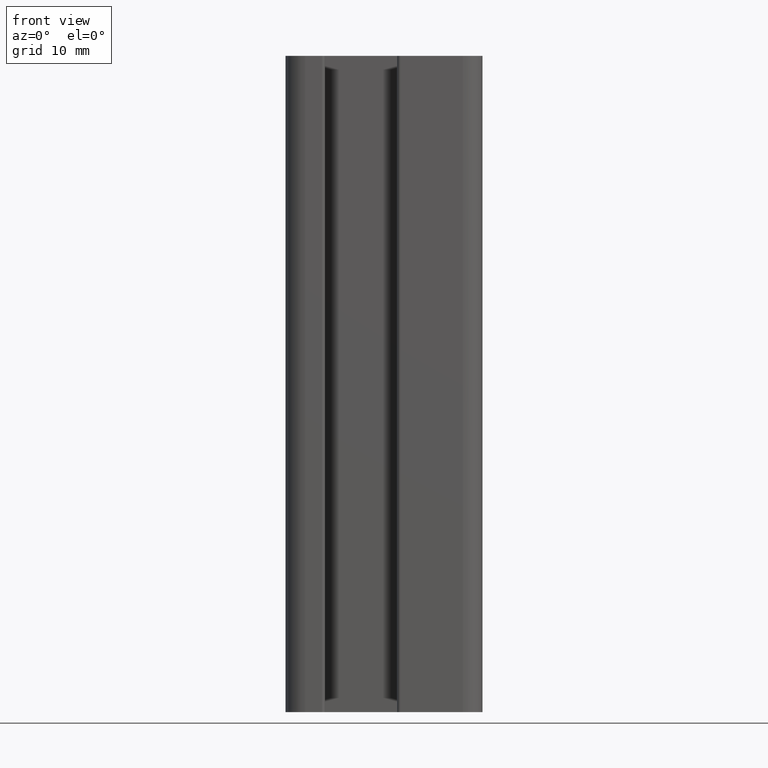
[diagram: clean part render]
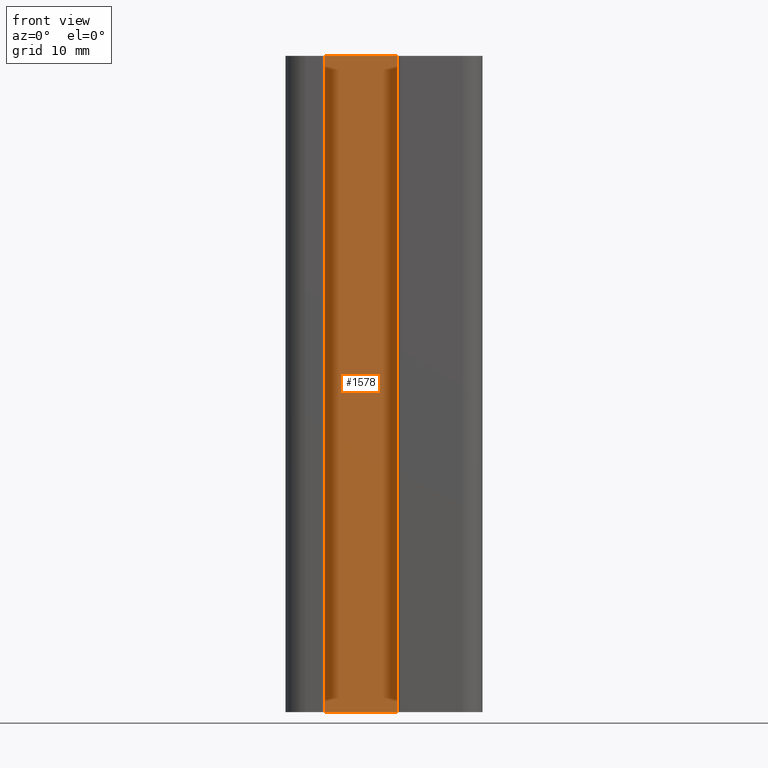
[diagram: same view with one face highlighted and labeled with its STEP entity id]
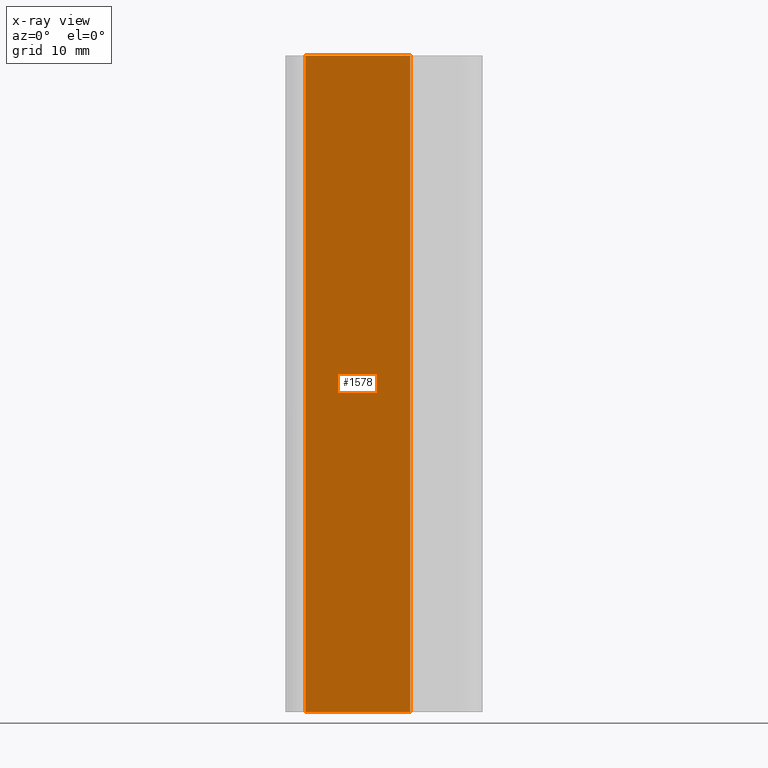
[diagram: x-ray of the same camera — body ghosted, the highlighted face saturated]
A machine part, front view. The second image highlights one B-rep face of the part: STEP entity #1578.
The next image is the same camera in x-ray: the body ghosted, the highlighted face saturated — about 0% of this face is hidden behind the body in this view.
In plain terms, the highlighted planar face has unit normal (0, 1, 0).
Its self-contained STEP definition (entity closure, byte-faithful):
#166=FACE_OUTER_BOUND('',#248,.T.);
#248=EDGE_LOOP('',(#1131,#1132,#1133,#1134));
#359=LINE('',#2435,#519);
#361=LINE('',#2441,#521);
#362=LINE('',#2443,#522);
#363=LINE('',#2444,#523);
#519=VECTOR('',#1949,100.);
#521=VECTOR('',#1955,16.);
#522=VECTOR('',#1956,100.);
#523=VECTOR('',#1957,16.);
#679=VERTEX_POINT('',#2431);
#681=VERTEX_POINT('',#2434);
#683=VERTEX_POINT('',#2440);
#684=VERTEX_POINT('',#2442);
#864=EDGE_CURVE('',#681,#679,#359,.T.);
#867=EDGE_CURVE('',#683,#679,#361,.T.);
#868=EDGE_CURVE('',#684,#683,#362,.T.);
#869=EDGE_CURVE('',#681,#684,#363,.T.);
#1131=ORIENTED_EDGE('',*,*,#867,.F.);
#1132=ORIENTED_EDGE('',*,*,#868,.F.);
#1133=ORIENTED_EDGE('',*,*,#869,.F.);
#1134=ORIENTED_EDGE('',*,*,#864,.T.);
#1523=PLANE('',#1688);
#1578=ADVANCED_FACE('',(#166),#1523,.F.);
#1688=AXIS2_PLACEMENT_3D('',#2439,#1953,#1954);
#1949=DIRECTION('',(0.,0.,1.));
#1953=DIRECTION('center_axis',(0.,1.,0.));
#1954=DIRECTION('ref_axis',(-1.,0.,0.));
#1955=DIRECTION('',(1.,0.,0.));
#1956=DIRECTION('',(0.,0.,1.));
#1957=DIRECTION('',(-1.,0.,0.));
#2431=CARTESIAN_POINT('',(4.00000000000001,-10.5,100.));
#2434=CARTESIAN_POINT('',(4.00000000000001,-10.5,0.));
#2435=CARTESIAN_POINT('',(4.00000000000001,-10.5,0.));
#2439=CARTESIAN_POINT('Origin',(4.00000000000001,-10.5,0.));
#2440=CARTESIAN_POINT('',(-12.,-10.5,100.));
#2441=CARTESIAN_POINT('',(2.,-10.5,100.));
#2442=CARTESIAN_POINT('',(-12.,-10.5,0.));
#2443=CARTESIAN_POINT('',(-12.,-10.5,0.));
#2444=CARTESIAN_POINT('',(2.,-10.5,0.));